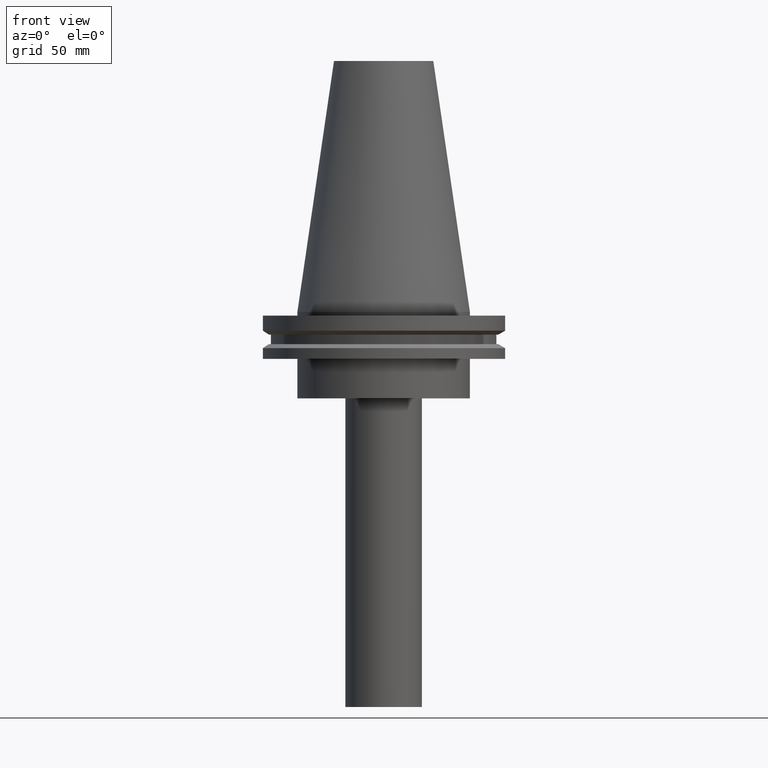
[diagram: clean part render]
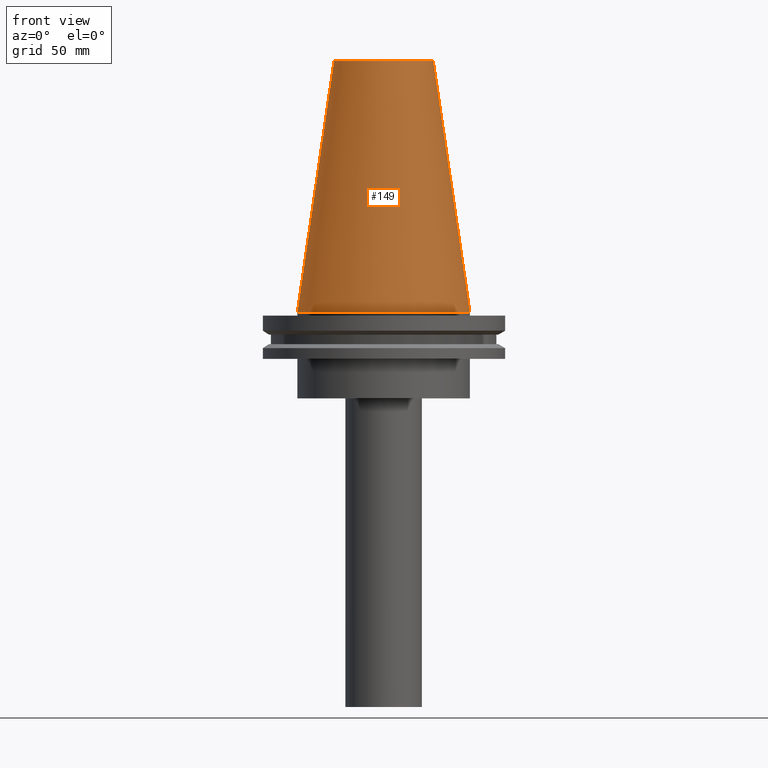
[diagram: same view with one face highlighted and labeled with its STEP entity id]
A machine part, front view. The second image highlights one B-rep face of the part: STEP entity #149.
In plain terms, the highlighted conical surface has half-angle 8.297 deg.
Its self-contained STEP definition (entity closure, byte-faithful):
#6 = CARTESIAN_POINT ( 'NONE',  ( 0.000000000000000000, 0.000000000000000000, 0.000000000000000000 ) ) ;
#15 = AXIS2_PLACEMENT_3D ( 'NONE', #360, #44, #165 ) ;
#27 = CIRCLE ( 'NONE', #219, 34.92499999999999005 ) ;
#44 = DIRECTION ( 'NONE',  ( 0.000000000000000000, 0.000000000000000000, -1.000000000000000000 ) ) ;
#50 = CONICAL_SURFACE ( 'NONE', #15, 34.92499999999999005, 0.1448138465474119452 ) ;
#63 = CIRCLE ( 'NONE', #221, 20.10819343178871321 ) ;
#67 = VERTEX_POINT ( 'NONE', #316 ) ;
#95 = CARTESIAN_POINT ( 'NONE',  ( 34.92499999999999005, 0.000000000000000000, 0.000000000000000000 ) ) ;
#96 = DIRECTION ( 'NONE',  ( 1.000000000000000000, 0.000000000000000000, 0.000000000000000000 ) ) ;
#108 = EDGE_CURVE ( 'NONE', #352, #352, #27, .T. ) ;
#120 = EDGE_LOOP ( 'NONE', ( #236 ) ) ;
#128 = CARTESIAN_POINT ( 'NONE',  ( 0.000000000000000000, 0.000000000000000000, 101.5999999999999801 ) ) ;
#129 = DIRECTION ( 'NONE',  ( -0.000000000000000000, -0.000000000000000000, 1.000000000000000000 ) ) ;
#149 = ADVANCED_FACE ( 'NONE', ( #227, #324 ), #50, .T. ) ;
#165 = DIRECTION ( 'NONE',  ( -1.000000000000000000, 0.000000000000000000, 0.000000000000000000 ) ) ;
#202 = EDGE_LOOP ( 'NONE', ( #257 ) ) ;
#219 = AXIS2_PLACEMENT_3D ( 'NONE', #6, #129, #96 ) ;
#221 = AXIS2_PLACEMENT_3D ( 'NONE', #128, #371, #243 ) ;
#227 = FACE_BOUND ( 'NONE', #202, .T. ) ;
#236 = ORIENTED_EDGE ( 'NONE', *, *, #108, .T. ) ;
#243 = DIRECTION ( 'NONE',  ( 1.000000000000000000, 0.000000000000000000, 0.000000000000000000 ) ) ;
#257 = ORIENTED_EDGE ( 'NONE', *, *, #388, .F. ) ;
#316 = CARTESIAN_POINT ( 'NONE',  ( 20.10819343178871321, 0.000000000000000000, 101.5999999999999801 ) ) ;
#324 = FACE_OUTER_BOUND ( 'NONE', #120, .T. ) ;
#352 = VERTEX_POINT ( 'NONE', #95 ) ;
#360 = CARTESIAN_POINT ( 'NONE',  ( 0.000000000000000000, 0.000000000000000000, 0.000000000000000000 ) ) ;
#371 = DIRECTION ( 'NONE',  ( -0.000000000000000000, -0.000000000000000000, 1.000000000000000000 ) ) ;
#388 = EDGE_CURVE ( 'NONE', #67, #67, #63, .T. ) ;